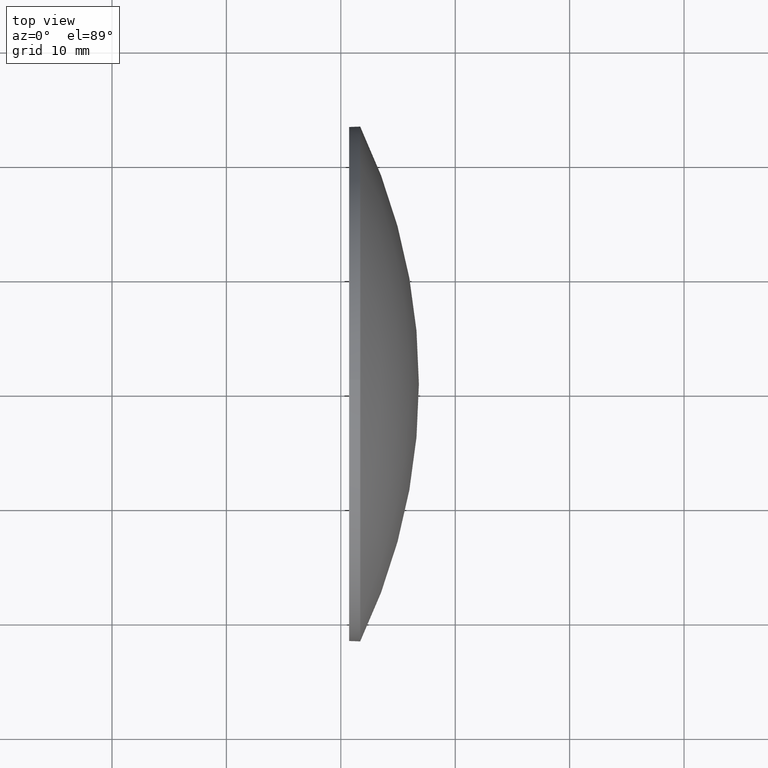
[diagram: clean part render]
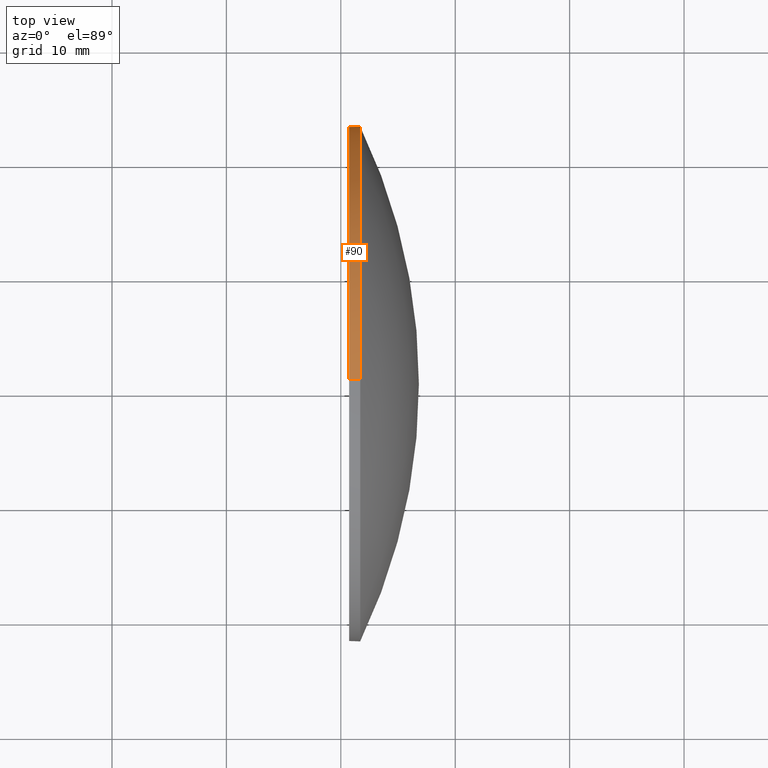
[diagram: same view with one face highlighted and labeled with its STEP entity id]
A machine part, top view. The second image highlights one B-rep face of the part: STEP entity #90.
In plain terms, the highlighted cylindrical surface (partial cylindrical patch) has radius 22.5 mm, axis along (-1, -0, -0).
Its self-contained STEP definition (entity closure, byte-faithful):
#2 = AXIS2_PLACEMENT_3D ( 'NONE', #32, #66, #127 ) ;
#13 = EDGE_CURVE ( 'NONE', #111, #160, #49, .T. ) ;
#15 = ORIENTED_EDGE ( 'NONE', *, *, #26, .T. ) ;
#16 = ORIENTED_EDGE ( 'NONE', *, *, #186, .F. ) ;
#17 = CARTESIAN_POINT ( 'NONE',  ( 390.7243700136168600, 50.66319577228512100, 22.50000000000000700 ) ) ;
#19 = VECTOR ( 'NONE', #23, 1000.000000000000000 ) ;
#21 = CARTESIAN_POINT ( 'NONE',  ( 391.6943700136168900, 50.66319577228512100, 0.0000000000000000000 ) ) ;
#23 = DIRECTION ( 'NONE',  ( -1.000000000000000000, -0.0000000000000000000, -0.0000000000000000000 ) ) ;
#26 = EDGE_CURVE ( 'NONE', #39, #116, #157, .T. ) ;
#32 = CARTESIAN_POINT ( 'NONE',  ( 381.2895901284637100, 50.66319577228512100, 0.0000000000000000000 ) ) ;
#36 = DIRECTION ( 'NONE',  ( 0.0000000000000000000, 0.0000000000000000000, 1.000000000000000000 ) ) ;
#37 = AXIS2_PLACEMENT_3D ( 'NONE', #155, #70, #42 ) ;
#39 = VERTEX_POINT ( 'NONE', #85 ) ;
#42 = DIRECTION ( 'NONE',  ( 0.0000000000000000000, 0.0000000000000000000, 1.000000000000000000 ) ) ;
#45 = VERTEX_POINT ( 'NONE', #17 ) ;
#49 = CIRCLE ( 'NONE', #125, 22.50000000000000700 ) ;
#65 = DIRECTION ( 'NONE',  ( -1.000000000000000000, -0.0000000000000000000, -0.0000000000000000000 ) ) ;
#66 = DIRECTION ( 'NONE',  ( -1.000000000000000000, -0.0000000000000000000, -0.0000000000000000000 ) ) ;
#70 = DIRECTION ( 'NONE',  ( -1.000000000000000000, -0.0000000000000000000, -0.0000000000000000000 ) ) ;
#85 = CARTESIAN_POINT ( 'NONE',  ( 391.6943700136168900, 50.66319577228512100, -22.50000000000000700 ) ) ;
#90 = ADVANCED_FACE ( 'NONE', ( #156 ), #154, .T. ) ;
#91 = VECTOR ( 'NONE', #135, 1000.000000000000000 ) ;
#94 = CARTESIAN_POINT ( 'NONE',  ( 381.2895901284637100, 50.66319577228512100, -22.50000000000000700 ) ) ;
#95 = ORIENTED_EDGE ( 'NONE', *, *, #13, .T. ) ;
#104 = CIRCLE ( 'NONE', #144, 22.50000000000000700 ) ;
#106 = EDGE_CURVE ( 'NONE', #160, #39, #104, .T. ) ;
#111 = VERTEX_POINT ( 'NONE', #164 ) ;
#116 = VERTEX_POINT ( 'NONE', #178 ) ;
#117 = CARTESIAN_POINT ( 'NONE',  ( 391.6943700136168900, 73.16319577228513500, 0.0000000000000000000 ) ) ;
#120 = CIRCLE ( 'NONE', #37, 22.50000000000000700 ) ;
#122 = LINE ( 'NONE', #143, #19 ) ;
#125 = AXIS2_PLACEMENT_3D ( 'NONE', #21, #147, #36 ) ;
#126 = EDGE_LOOP ( 'NONE', ( #132, #15, #16, #173, #95 ) ) ;
#127 = DIRECTION ( 'NONE',  ( 0.0000000000000000000, 0.0000000000000000000, 1.000000000000000000 ) ) ;
#132 = ORIENTED_EDGE ( 'NONE', *, *, #106, .T. ) ;
#135 = DIRECTION ( 'NONE',  ( -1.000000000000000000, -0.0000000000000000000, -0.0000000000000000000 ) ) ;
#143 = CARTESIAN_POINT ( 'NONE',  ( 381.2895901284637100, 50.66319577228512100, 22.50000000000000700 ) ) ;
#144 = AXIS2_PLACEMENT_3D ( 'NONE', #175, #65, #161 ) ;
#147 = DIRECTION ( 'NONE',  ( -1.000000000000000000, -0.0000000000000000000, -0.0000000000000000000 ) ) ;
#149 = EDGE_CURVE ( 'NONE', #111, #45, #122, .T. ) ;
#154 = CYLINDRICAL_SURFACE ( 'NONE', #2, 22.50000000000000700 ) ;
#155 = CARTESIAN_POINT ( 'NONE',  ( 390.7243700136168600, 50.66319577228512100, 0.0000000000000000000 ) ) ;
#156 = FACE_OUTER_BOUND ( 'NONE', #126, .T. ) ;
#157 = LINE ( 'NONE', #94, #91 ) ;
#160 = VERTEX_POINT ( 'NONE', #117 ) ;
#161 = DIRECTION ( 'NONE',  ( 0.0000000000000000000, 0.0000000000000000000, 1.000000000000000000 ) ) ;
#164 = CARTESIAN_POINT ( 'NONE',  ( 391.6943700136168900, 50.66319577228512100, 22.50000000000000700 ) ) ;
#173 = ORIENTED_EDGE ( 'NONE', *, *, #149, .F. ) ;
#175 = CARTESIAN_POINT ( 'NONE',  ( 391.6943700136168900, 50.66319577228512100, 0.0000000000000000000 ) ) ;
#178 = CARTESIAN_POINT ( 'NONE',  ( 390.7243700136168600, 50.66319577228512100, -22.50000000000000700 ) ) ;
#186 = EDGE_CURVE ( 'NONE', #45, #116, #120, .T. ) ;